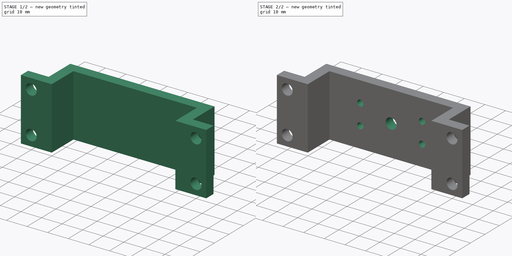
[diagram: build sequence overview — one tinted view per stage of 2, left to right]
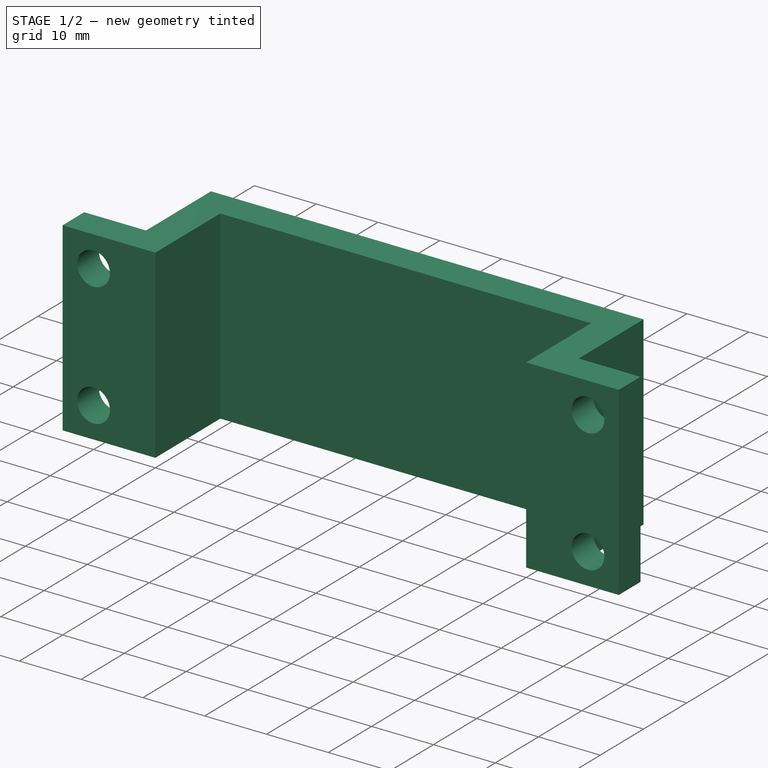
[diagram: stage 1 of 2 — iso view after this stage's code; geometry added in this stage tinted green]
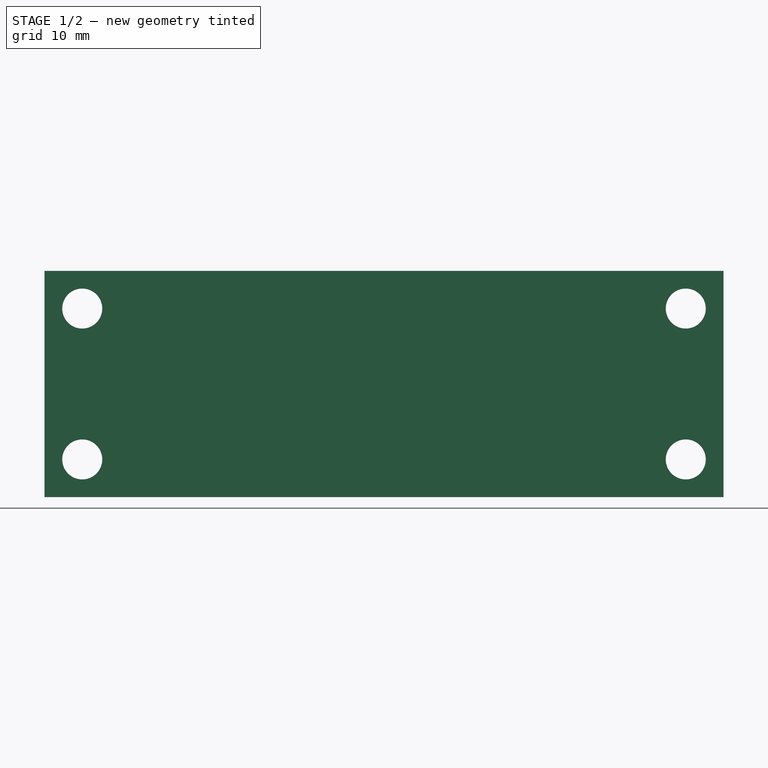
[diagram: stage 1 of 2 — front view after this stage's code; geometry added in this stage tinted green]
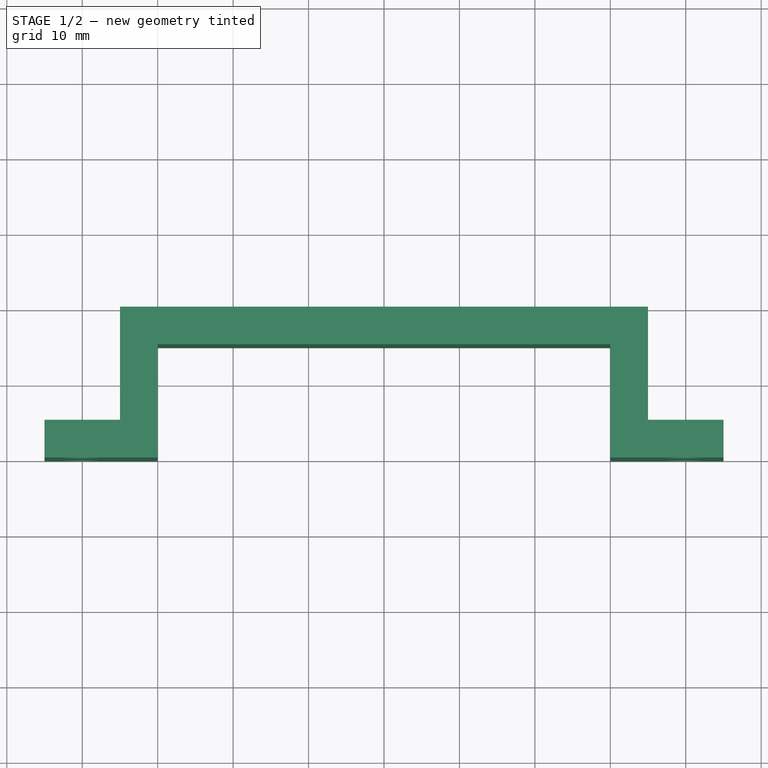
[diagram: stage 1 of 2 — top view after this stage's code; geometry added in this stage tinted green]
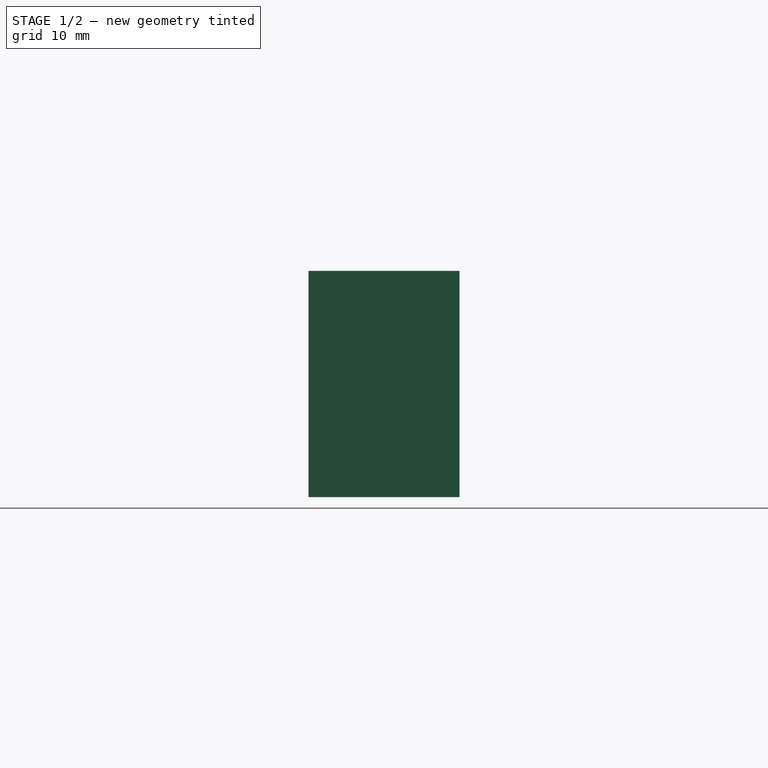
[diagram: stage 1 of 2 — right view after this stage's code; geometry added in this stage tinted green]
FCSTD DOCUMENT  (FreeCAD 0.21R33771 (Git))
Label: ArmBase-0
License: All rights reserved
LicenseURL: https://en.wikipedia.org/wiki/All_rights_reserved
objects: Sketcher::SketchObject×3, PartDesign::Pocket×2, PartDesign::Pad×1, PartDesign::Body×1
note: 10 computed .brp shape members not serialized (recipe doc carries the construction recipe); baked Part::Feature solids carry a one-line shape summary decoded from their .brp

FEATURE [Sketcher::SketchObject] Sketch
  FullyConstrained = true
  MapMode = 5
  Support = -> [XY_Plane]
  sketch-geometry (12):
    g0: LineSegment StartX=-45 StartY=-10 StartZ=0 EndX=-30 EndY=-10 EndZ=0
    g1: LineSegment StartX=-30 StartY=-10 StartZ=0 EndX=-30 EndY=5 EndZ=0
    g2: LineSegment StartX=-30 StartY=5 StartZ=0 EndX=30 EndY=5 EndZ=0
    g3: LineSegment StartX=30 StartY=5 StartZ=0 EndX=30 EndY=-10 EndZ=0
    g4: LineSegment StartX=30 StartY=-10 StartZ=0 EndX=45 EndY=-10 EndZ=0
    g5: LineSegment StartX=45 StartY=-10 StartZ=0 EndX=45 EndY=-5 EndZ=0
    g6: LineSegment StartX=45 StartY=-5 StartZ=0 EndX=35 EndY=-5 EndZ=0
    g7: LineSegment StartX=35 StartY=-5 StartZ=0 EndX=35 EndY=10 EndZ=0
    g8: LineSegment StartX=35 StartY=10 StartZ=0 EndX=-35 EndY=10 EndZ=0
    g9: LineSegment StartX=-35 StartY=10 StartZ=0 EndX=-35 EndY=-5 EndZ=0
    g10: LineSegment StartX=-35 StartY=-5 StartZ=0 EndX=-45 EndY=-5 EndZ=0
    g11: LineSegment StartX=-45 StartY=-5 StartZ=0 EndX=-45 EndY=-10 EndZ=0
  constraints (36):
    c: Horizontal(g0)
    c: Coincident(g0,g1)
    c: Vertical(g1)
    c: Coincident(g1,g2)
    c: Horizontal(g2)
    c: Coincident(g2,g3)
    c: Vertical(g3)
    c: Coincident(g3,g4)
    c: Horizontal(g4)
    c: Coincident(g4,g5)
    c: Vertical(g5)
    c: Coincident(g5,g6)
    c: Horizontal(g6)
    c: Coincident(g6,g7)
    c: Vertical(g7)
    c: Coincident(g7,g8)
    c: Horizontal(g8)
    c: Coincident(g8,g9)
    c: Vertical(g9)
    c: Coincident(g9,g10)
    c: Coincident(g10,g11)
    c: Coincident(g11,g0)
    c: Vertical(g11)
    c: Horizontal(g10)
    c: DistanceX(g10,g9) = 10
    c: DistanceX(g6,g5) = 10
    c: DistanceX(g0,g0) = 15
    c: DistanceX(g3,g4) = 15
    c: DistanceY(g1,g8) = 5
    c: DistanceY(g0,g10) = 5
    c: DistanceY(g4,g5) = 5
    c: DistanceY(g0,g3) = 0
    c: DistanceY(g0,g8) = 20
    c: DistanceX(g10,g5) = 90
    c: DistanceX(g10,g-1) = 45
    c: DistanceY(g0,g-1) = 10
FEATURE [PartDesign::Pad] Pad
  Direction = (0,0,1)
  Length = 30
  Length2 = 10
  Profile = -> Sketch
  ReferenceAxis = -> Sketch [N_Axis]
  Type = 0
FEATURE [Sketcher::SketchObject] Sketch001
  ExternalGeometry = -> [Pad]
  FullyConstrained = true
  MapMode = 5
  Placement = pos=(0,-5,0) rot=(0,0.707107,0.707107;3.14159rad)
  Support = -> [Pad]
  sketch-geometry (4):
    g0: Circle CenterX=-40 CenterY=25 CenterZ=0 NormalX=0 NormalY=0 NormalZ=1 AngleXU=0 Radius=2.65
    g1: Circle CenterX=-40 CenterY=5 CenterZ=0 NormalX=0 NormalY=0 NormalZ=1 AngleXU=0 Radius=2.65
    g2: Circle CenterX=40 CenterY=25 CenterZ=0 NormalX=0 NormalY=0 NormalZ=1 AngleXU=0 Radius=2.65
    g3: Circle CenterX=40 CenterY=5 CenterZ=0 NormalX=0 NormalY=0 NormalZ=1 AngleXU=0 Radius=2.65
  constraints (12):
    c: DistanceX(g-3,g0) = 5
    c: DistanceX(g-3,g1) = 5
    c: DistanceX(g3,g-4) = 5
    c: DistanceX(g2,g-4) = 5
    c: DistanceY(g0,g-3) = 5
    c: DistanceY(g-3,g1) = 5
    c: DistanceY(g-4,g3) = 5
    c: DistanceY(g2,g-4) = 5
    c: Diameter(g0) = 5.3
    c: Diameter(g1) = 5.3
    c: Diameter(g3) = 5.3
    c: Diameter(g2) = 5.3
FEATURE [PartDesign::Pocket] Pocket
  BaseFeature = -> Pad
  Direction = (0,-1,2e-16)
  Length = 5
  Length2 = 5
  Profile = -> Sketch001
  ReferenceAxis = -> Sketch001 [N_Axis]
  Type = 0
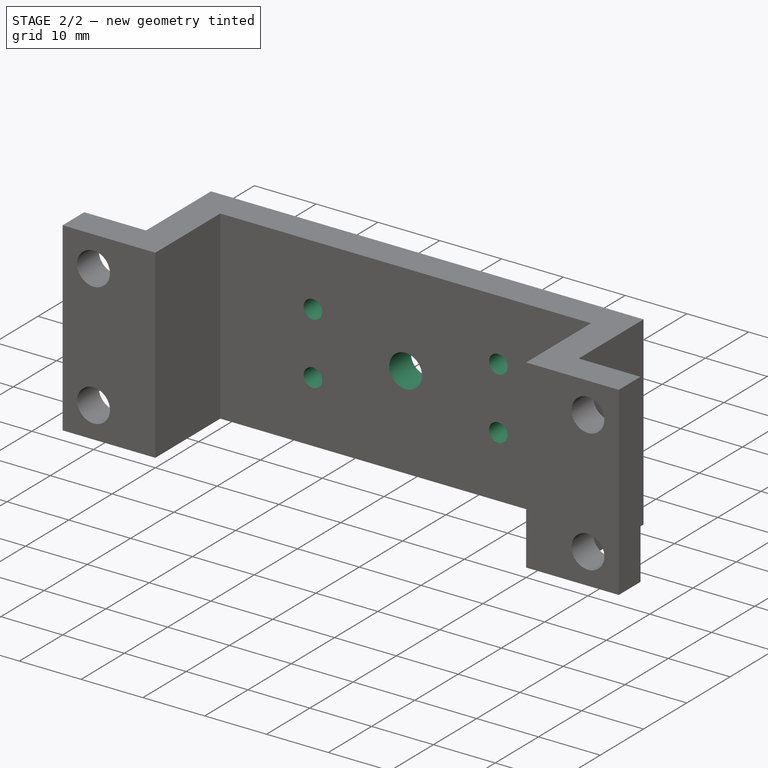
[diagram: stage 2 of 2 — iso view after this stage's code; geometry added in this stage tinted green]
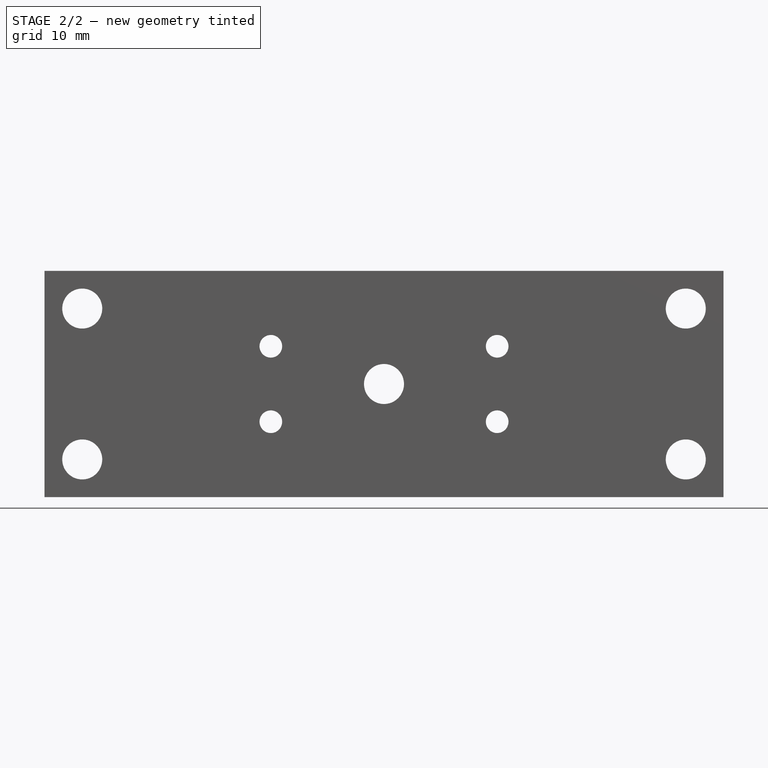
[diagram: stage 2 of 2 — front view after this stage's code; geometry added in this stage tinted green]
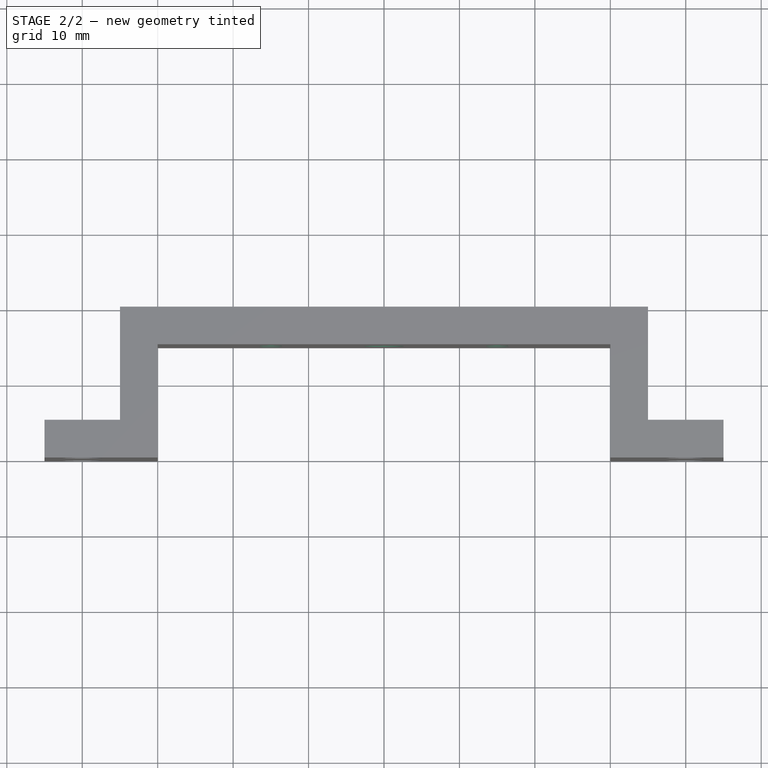
[diagram: stage 2 of 2 — top view after this stage's code; geometry added in this stage tinted green]
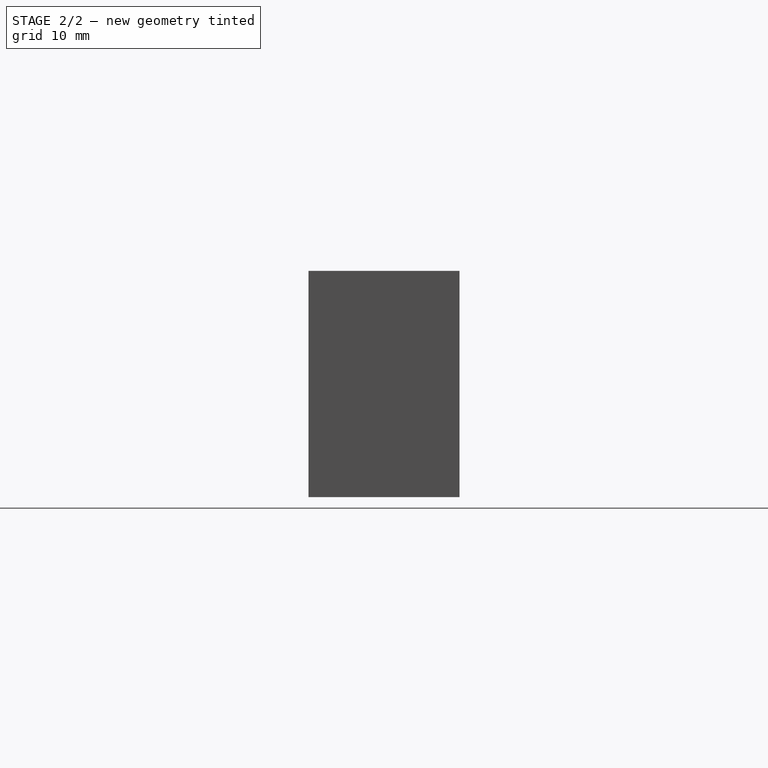
[diagram: stage 2 of 2 — right view after this stage's code; geometry added in this stage tinted green]
FEATURE [Sketcher::SketchObject] Sketch002
  FullyConstrained = true
  MapMode = 5
  Placement = pos=(0,10,0) rot=(0,0.707107,0.707107;3.14159rad)
  Support = -> [Pocket]
  sketch-geometry (5):
    g0: Circle CenterX=0 CenterY=15 CenterZ=0 NormalX=0 NormalY=0 NormalZ=1 AngleXU=0 Radius=2.65
    g1: Circle CenterX=-15 CenterY=20 CenterZ=0 NormalX=0 NormalY=0 NormalZ=1 AngleXU=0 Radius=1.5
    g2: Circle CenterX=-15 CenterY=10 CenterZ=0 NormalX=0 NormalY=0 NormalZ=1 AngleXU=0 Radius=1.5
    g3: Circle CenterX=15 CenterY=20 CenterZ=0 NormalX=0 NormalY=0 NormalZ=1 AngleXU=0 Radius=1.5
    g4: Circle CenterX=15 CenterY=10 CenterZ=0 NormalX=0 NormalY=0 NormalZ=1 AngleXU=0 Radius=1.5
  constraints (15):
    c: PointOnObject(g0,g-2)
    c: DistanceY(g-1,g0) = 15
    c: Diameter(g0) = 5.3
    c: Diameter(g1) = 3
    c: Diameter(g2) = 3
    c: Diameter(g3) = 3
    c: Diameter(g4) = 3
    c: DistanceX(g2,g4) = 30
    c: DistanceX(g1,g3) = 30
    c: DistanceX(g0,g4) = 15
    c: DistanceX(g0,g3) = 15
    c: DistanceY(g2,g1) = 10
    c: DistanceY(g4,g3) = 10
    c: DistanceY(g-1,g2) = 10
    c: DistanceY(g-1,g4) = 10
FEATURE [PartDesign::Pocket] Pocket001
  BaseFeature = -> Pocket
  Direction = (0,-1,2e-16)
  Length = 5
  Length2 = 5
  Profile = -> Sketch002
  ReferenceAxis = -> Sketch002 [N_Axis]
  Type = 0
FEATURE [PartDesign::Body] Body
  Group = -> [Sketch,Pad,Sketch001,Pocket,Sketch002,Pocket001]
  Origin = -> Origin
  Tip = -> Pocket001
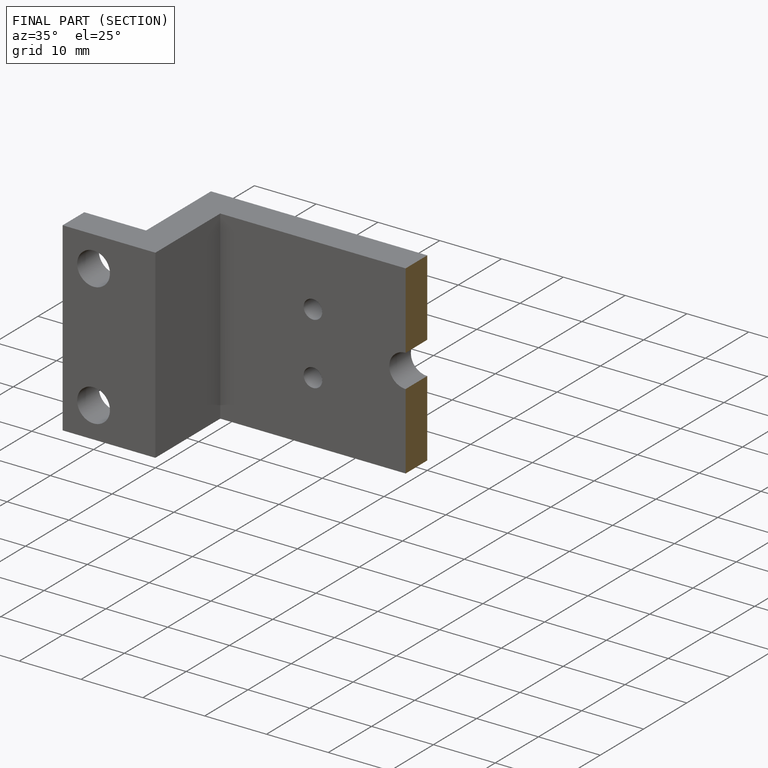
[diagram: finished part — half-section view (interior)]
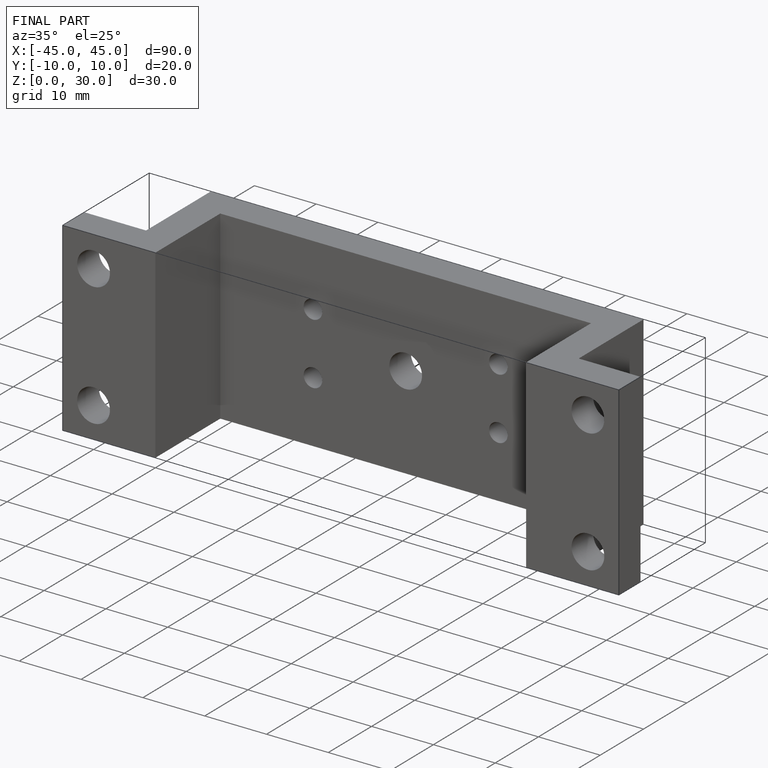
[diagram: finished part — iso view with bounding-box wireframe]
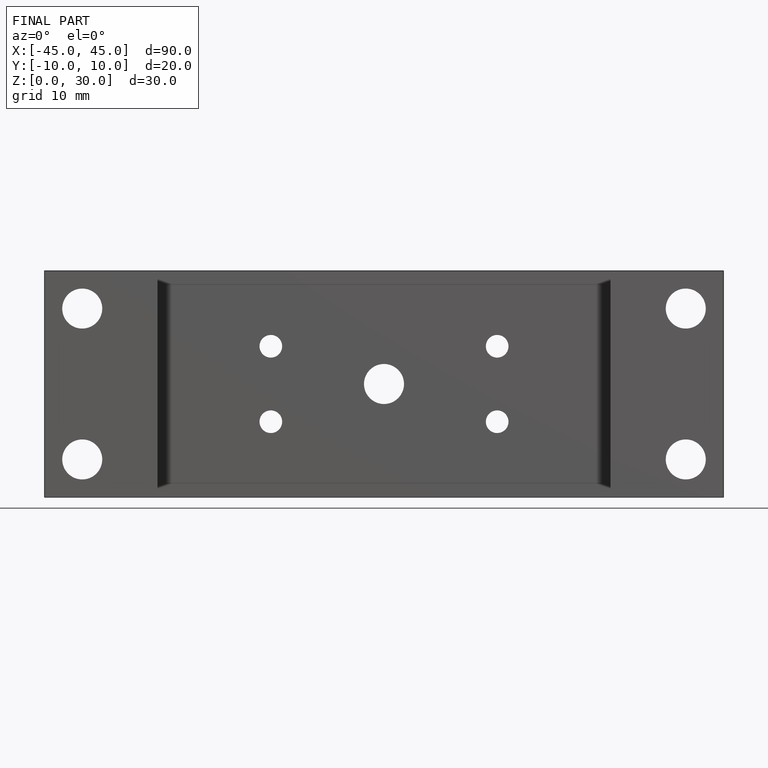
[diagram: finished part — front view with bounding-box wireframe]
